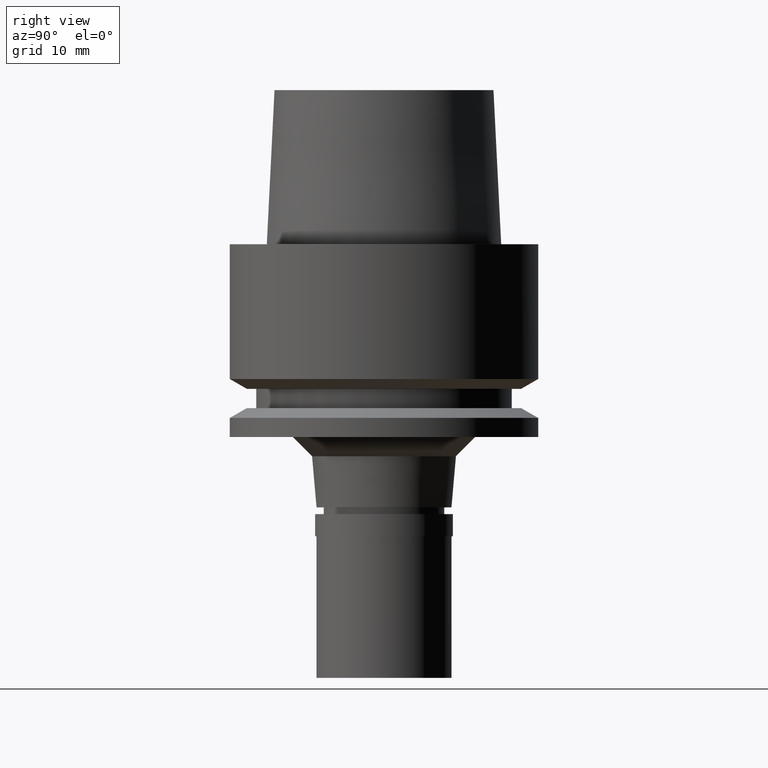
[diagram: clean part render]
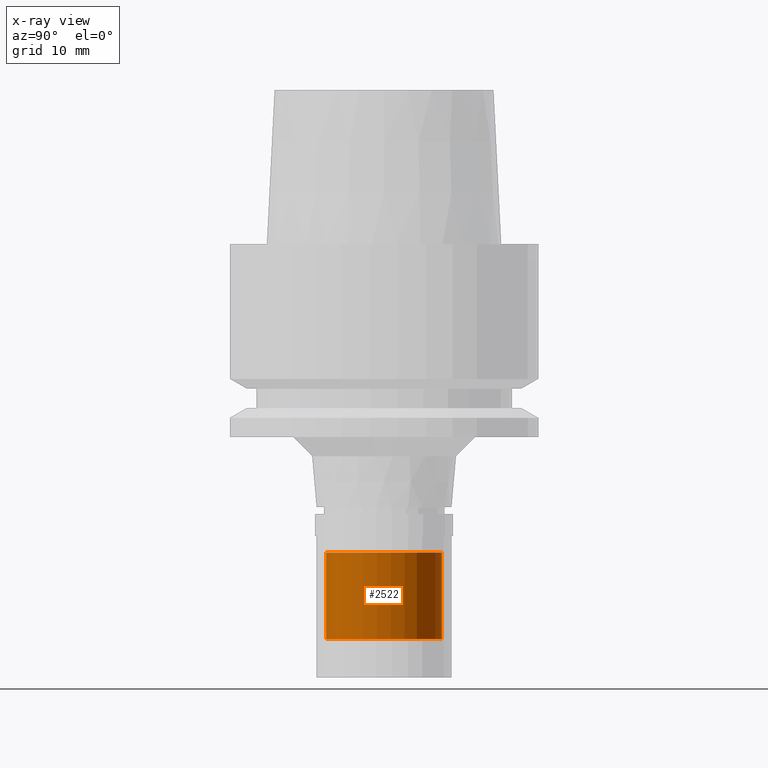
[diagram: x-ray — body ghosted, one internal face saturated and labeled with its STEP entity id]
A machine part, right view, then the same camera in x-ray: the body is ghosted and one INTERNAL B-rep face — a face not visible from any outside direction — is saturated and labeled: STEP entity #2522.
In plain terms, the highlighted cylindrical surface (partial cylindrical patch) has radius 6 mm, axis along (0, 0, -1).
Its self-contained STEP definition (entity closure, byte-faithful):
#53 = CYLINDRICAL_SURFACE ( 'NONE', #2638, 6.000000000000000000 ) ;
#301 = ORIENTED_EDGE ( 'NONE', *, *, #1756, .T. ) ;
#428 = CARTESIAN_POINT ( 'NONE',  ( 0.0000000000000000000, 6.000000000000000000, -32.00000000000000000 ) ) ;
#469 = CARTESIAN_POINT ( 'NONE',  ( 0.0000000000000000000, 0.0000000000000000000, -32.00000000000000000 ) ) ;
#479 = DIRECTION ( 'NONE',  ( 0.0000000000000000000, 0.0000000000000000000, 1.000000000000000000 ) ) ;
#619 = EDGE_CURVE ( 'NONE', #2547, #1169, #740, .T. ) ;
#740 = LINE ( 'NONE', #2410, #1767 ) ;
#799 = ORIENTED_EDGE ( 'NONE', *, *, #2529, .T. ) ;
#844 = DIRECTION ( 'NONE',  ( 0.0000000000000000000, -1.000000000000000000, 0.0000000000000000000 ) ) ;
#888 = CARTESIAN_POINT ( 'NONE',  ( 0.0000000000000000000, 0.0000000000000000000, 18.84999999999999787 ) ) ;
#908 = DIRECTION ( 'NONE',  ( 0.0000000000000000000, 0.0000000000000000000, -1.000000000000000000 ) ) ;
#987 = VERTEX_POINT ( 'NONE', #428 ) ;
#1077 = CIRCLE ( 'NONE', #1509, 6.000000000000000000 ) ;
#1169 = VERTEX_POINT ( 'NONE', #2676 ) ;
#1274 = DIRECTION ( 'NONE',  ( 0.0000000000000000000, 1.000000000000000000, 0.0000000000000000000 ) ) ;
#1282 = DIRECTION ( 'NONE',  ( 0.0000000000000000000, 0.0000000000000000000, -1.000000000000000000 ) ) ;
#1286 = VERTEX_POINT ( 'NONE', #2326 ) ;
#1509 = AXIS2_PLACEMENT_3D ( 'NONE', #2515, #479, #844 ) ;
#1542 = DIRECTION ( 'NONE',  ( 0.0000000000000000000, 0.0000000000000000000, -1.000000000000000000 ) ) ;
#1677 = CARTESIAN_POINT ( 'NONE',  ( 0.0000000000000000000, 6.000000000000000000, -32.00000000000000000 ) ) ;
#1681 = EDGE_CURVE ( 'NONE', #987, #1286, #2671, .T. ) ;
#1687 = DIRECTION ( 'NONE',  ( 0.0000000000000000000, 0.0000000000000000000, -1.000000000000000000 ) ) ;
#1706 = ORIENTED_EDGE ( 'NONE', *, *, #619, .T. ) ;
#1714 = ORIENTED_EDGE ( 'NONE', *, *, #1681, .F. ) ;
#1756 = EDGE_CURVE ( 'NONE', #1169, #1286, #1077, .T. ) ;
#1767 = VECTOR ( 'NONE', #1542, 1000.000000000000000 ) ;
#1823 = AXIS2_PLACEMENT_3D ( 'NONE', #469, #1687, #1274 ) ;
#1932 = FACE_OUTER_BOUND ( 'NONE', #2567, .T. ) ;
#2078 = CIRCLE ( 'NONE', #1823, 6.000000000000000000 ) ;
#2111 = DIRECTION ( 'NONE',  ( 0.0000000000000000000, -1.000000000000000000, 0.0000000000000000000 ) ) ;
#2158 = VECTOR ( 'NONE', #908, 1000.000000000000000 ) ;
#2326 = CARTESIAN_POINT ( 'NONE',  ( 0.0000000000000000000, 6.000000000000000000, -41.00000000000000000 ) ) ;
#2410 = CARTESIAN_POINT ( 'NONE',  ( 0.0000000000000000000, -6.000000000000000000, -32.00000000000000000 ) ) ;
#2507 = CARTESIAN_POINT ( 'NONE',  ( 0.0000000000000000000, -6.000000000000000000, -32.00000000000000000 ) ) ;
#2515 = CARTESIAN_POINT ( 'NONE',  ( 0.0000000000000000000, 0.0000000000000000000, -41.00000000000000000 ) ) ;
#2522 = ADVANCED_FACE ( 'NONE', ( #1932 ), #53, .T. ) ;
#2529 = EDGE_CURVE ( 'NONE', #987, #2547, #2078, .T. ) ;
#2547 = VERTEX_POINT ( 'NONE', #2507 ) ;
#2567 = EDGE_LOOP ( 'NONE', ( #799, #1706, #301, #1714 ) ) ;
#2638 = AXIS2_PLACEMENT_3D ( 'NONE', #888, #1282, #2111 ) ;
#2671 = LINE ( 'NONE', #1677, #2158 ) ;
#2676 = CARTESIAN_POINT ( 'NONE',  ( 0.0000000000000000000, -6.000000000000000000, -41.00000000000000000 ) ) ;